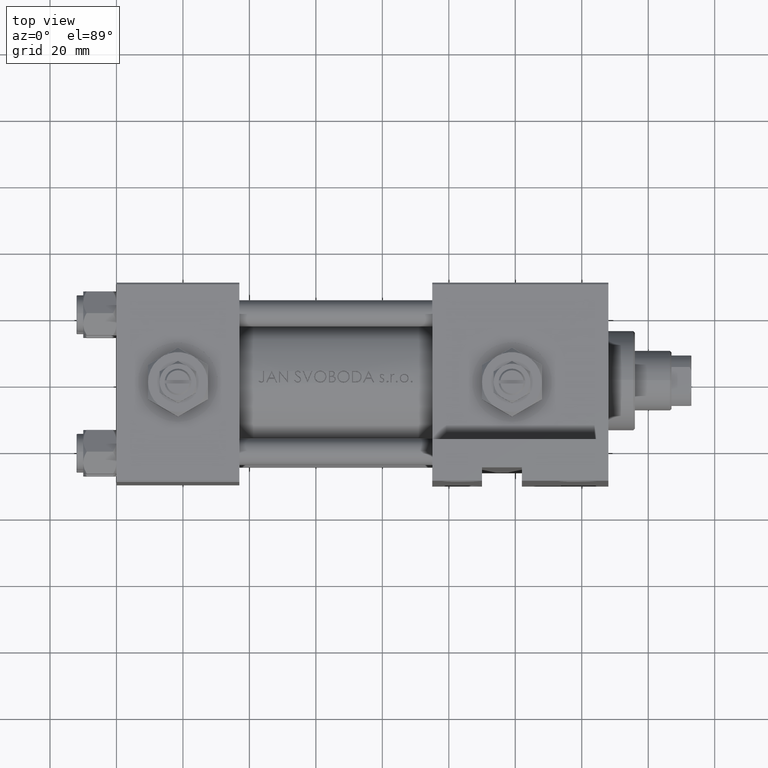
[diagram: clean part render]
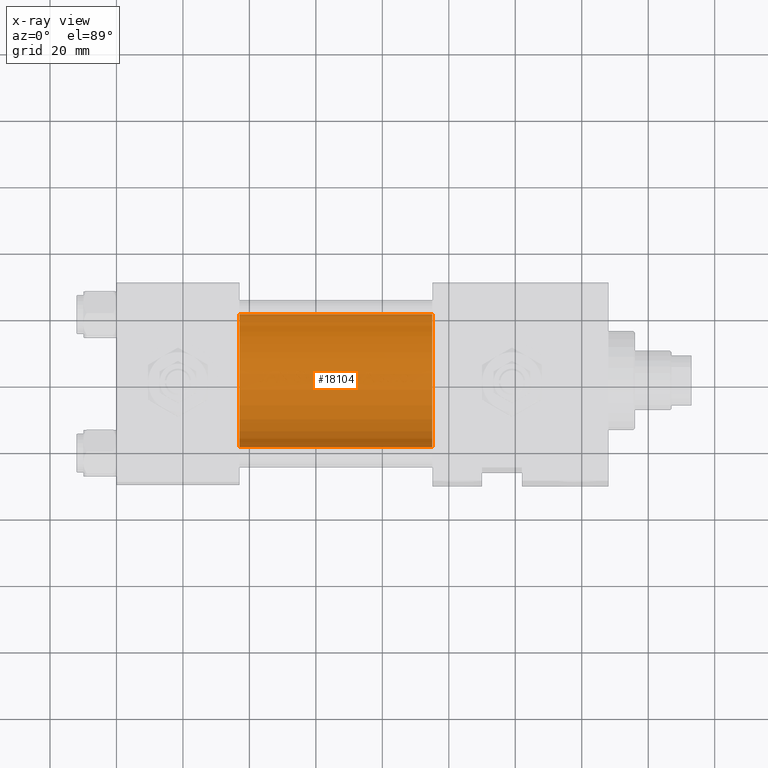
[diagram: x-ray — body ghosted, one internal face saturated and labeled with its STEP entity id]
A machine part, top view, then the same camera in x-ray: the body is ghosted and one INTERNAL B-rep face — a face not visible from any outside direction — is saturated and labeled: STEP entity #18104.
In plain terms, the highlighted cylindrical surface (partial cylindrical patch) has radius 20 mm, axis along (-1, -0, 0).
Its self-contained STEP definition (entity closure, byte-faithful):
#809 = FACE_OUTER_BOUND ( 'NONE', #14359, .T. ) ;
#1834 = DIRECTION ( 'NONE',  ( -1.000000000000000000, -0.000000000000000000, -0.000000000000000000 ) ) ;
#2330 = VECTOR ( 'NONE', #1834, 1000.000000000000000 ) ;
#4041 = EDGE_CURVE ( 'NONE', #21287, #10073, #47044, .T. ) ;
#4386 = CYLINDRICAL_SURFACE ( 'NONE', #35841, 20.00000000000000000 ) ;
#4420 = CARTESIAN_POINT ( 'NONE',  ( 95.00000000000000000, 2.326828918379970576E-15, -19.00000000000000000 ) ) ;
#4906 = DIRECTION ( 'NONE',  ( -1.000000000000000000, -0.000000000000000000, -0.000000000000000000 ) ) ;
#5383 = EDGE_CURVE ( 'NONE', #10073, #28107, #40810, .T. ) ;
#6838 = CARTESIAN_POINT ( 'NONE',  ( 95.00000000000000000, -1.224646799147354686E-16, 21.00000000000000000 ) ) ;
#7862 = CARTESIAN_POINT ( 'NONE',  ( 95.00000000000000000, 2.326828918379970576E-15, -19.00000000000000000 ) ) ;
#10073 = VERTEX_POINT ( 'NONE', #27753 ) ;
#10358 = AXIS2_PLACEMENT_3D ( 'NONE', #14633, #18220, #30272 ) ;
#11043 = VERTEX_POINT ( 'NONE', #6838 ) ;
#11728 = EDGE_CURVE ( 'NONE', #21287, #11043, #40654, .T. ) ;
#14359 = EDGE_LOOP ( 'NONE', ( #27080, #45101, #39186, #29266 ) ) ;
#14633 = CARTESIAN_POINT ( 'NONE',  ( 95.00000000000000000, -1.224646799147354686E-16, 1.000000000000000888 ) ) ;
#18104 = ADVANCED_FACE ( 'NONE', ( #809 ), #4386, .F. ) ;
#18220 = DIRECTION ( 'NONE',  ( 1.000000000000000000, 0.000000000000000000, 0.000000000000000000 ) ) ;
#19701 = EDGE_CURVE ( 'NONE', #11043, #28107, #32888, .T. ) ;
#20559 = DIRECTION ( 'NONE',  ( 0.000000000000000000, 0.000000000000000000, 1.000000000000000000 ) ) ;
#20591 = DIRECTION ( 'NONE',  ( -1.000000000000000000, -0.000000000000000000, -0.000000000000000000 ) ) ;
#21287 = VERTEX_POINT ( 'NONE', #7862 ) ;
#22759 = AXIS2_PLACEMENT_3D ( 'NONE', #34753, #35261, #35505 ) ;
#27080 = ORIENTED_EDGE ( 'NONE', *, *, #4041, .F. ) ;
#27753 = CARTESIAN_POINT ( 'NONE',  ( 37.00000000000000000, 2.326828918379970576E-15, -19.00000000000000000 ) ) ;
#28107 = VERTEX_POINT ( 'NONE', #34463 ) ;
#29266 = ORIENTED_EDGE ( 'NONE', *, *, #5383, .F. ) ;
#30272 = DIRECTION ( 'NONE',  ( 0.000000000000000000, 0.000000000000000000, -1.000000000000000000 ) ) ;
#32888 = LINE ( 'NONE', #33136, #2330 ) ;
#33136 = CARTESIAN_POINT ( 'NONE',  ( 95.00000000000000000, -1.224646799147354686E-16, 21.00000000000000000 ) ) ;
#34205 = VECTOR ( 'NONE', #20591, 1000.000000000000000 ) ;
#34463 = CARTESIAN_POINT ( 'NONE',  ( 37.00000000000000000, -1.224646799147354686E-16, 21.00000000000000000 ) ) ;
#34753 = CARTESIAN_POINT ( 'NONE',  ( 37.00000000000000000, -1.224646799147354686E-16, 1.000000000000000888 ) ) ;
#35261 = DIRECTION ( 'NONE',  ( 1.000000000000000000, 0.000000000000000000, 0.000000000000000000 ) ) ;
#35505 = DIRECTION ( 'NONE',  ( 0.000000000000000000, 0.000000000000000000, -1.000000000000000000 ) ) ;
#35841 = AXIS2_PLACEMENT_3D ( 'NONE', #36464, #4906, #20559 ) ;
#36464 = CARTESIAN_POINT ( 'NONE',  ( 95.00000000000000000, -1.224646799147354686E-16, 1.000000000000000888 ) ) ;
#39186 = ORIENTED_EDGE ( 'NONE', *, *, #19701, .T. ) ;
#40654 = CIRCLE ( 'NONE', #10358, 20.00000000000000000 ) ;
#40810 = CIRCLE ( 'NONE', #22759, 20.00000000000000000 ) ;
#45101 = ORIENTED_EDGE ( 'NONE', *, *, #11728, .T. ) ;
#47044 = LINE ( 'NONE', #4420, #34205 ) ;